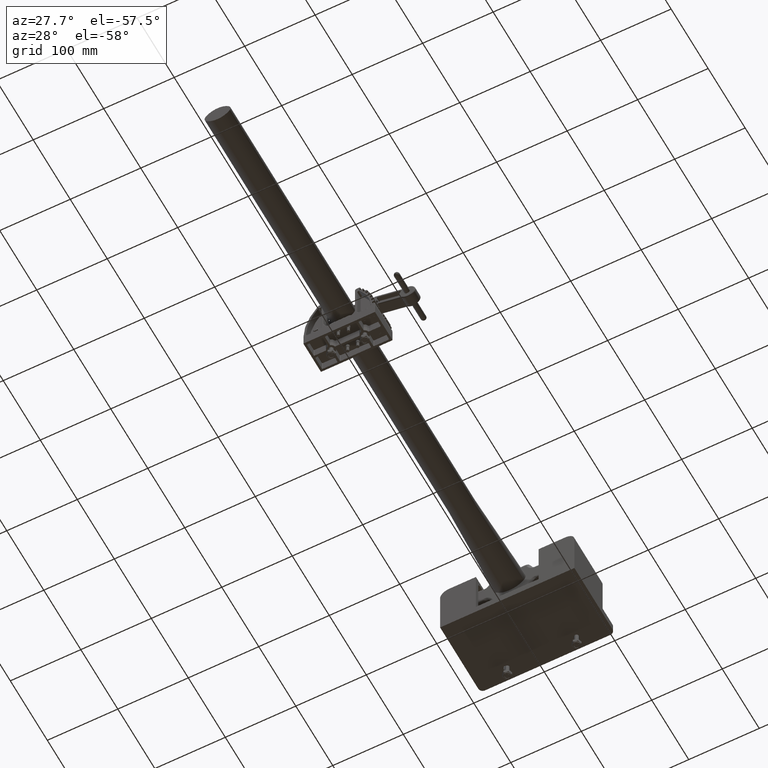
[diagram: clean part render]
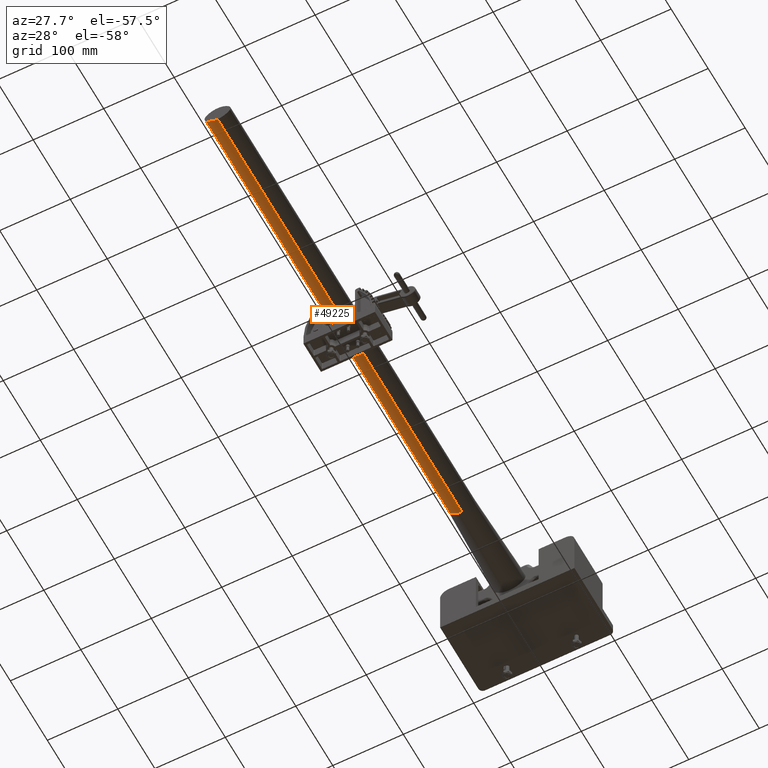
[diagram: same view with one face highlighted and labeled with its STEP entity id]
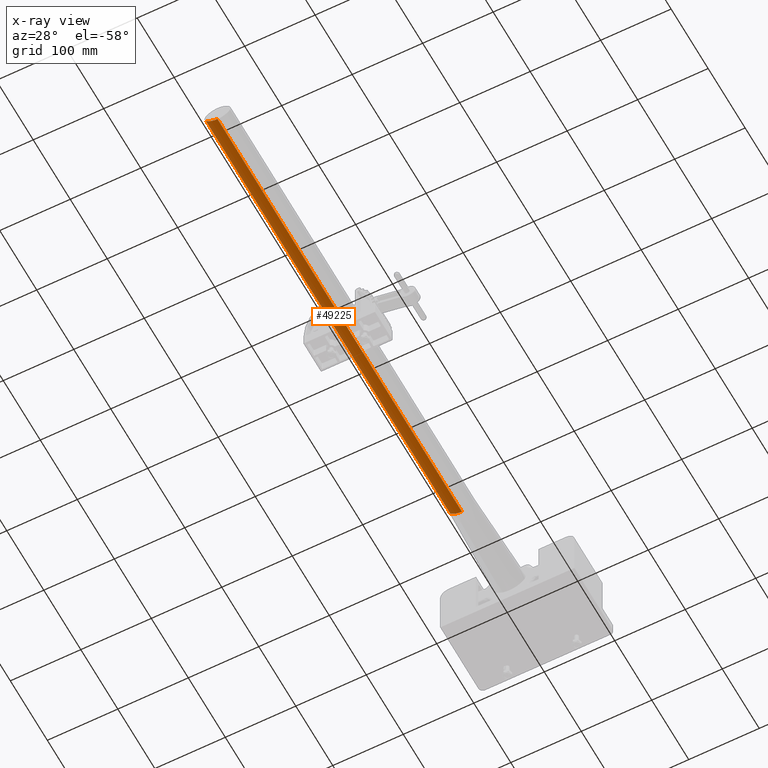
[diagram: x-ray of the same camera — body ghosted, the highlighted face saturated]
A machine part, auxiliary view. The second image highlights one B-rep face of the part: STEP entity #49225.
The next image is the same camera in x-ray: the body ghosted, the highlighted face saturated — about 0% of this face is hidden behind the body in this view.
In plain terms, the highlighted cylindrical surface (edge-blend (fillet) strip) has radius 21.844 mm, axis along (-0, -1, -0).
Its self-contained STEP definition (entity closure, byte-faithful):
#1464 = VERTEX_POINT ( 'NONE', #25642 ) ;
#1488 = VERTEX_POINT ( 'NONE', #4899 ) ;
#1492 = VERTEX_POINT ( 'NONE', #4903 ) ;
#1494 = VERTEX_POINT ( 'NONE', #4905 ) ;
#4899 = CARTESIAN_POINT ( 'NONE',  ( 1.093806325588230400E-016, 0.0000000000000000000, -0.5000000000000001100 ) ) ;
#4903 = CARTESIAN_POINT ( 'NONE',  ( -0.6479452054794520000, 26.00000000000000000, -0.2054794520547947300 ) ) ;
#4905 = CARTESIAN_POINT ( 'NONE',  ( -0.6479452054794520000, 0.0000000000000000000, -0.2054794520547944500 ) ) ;
#7673 = ORIENTED_EDGE ( 'NONE', *, *, #35003, .F. ) ;
#7675 = ORIENTED_EDGE ( 'NONE', *, *, #35002, .T. ) ;
#7676 = ORIENTED_EDGE ( 'NONE', *, *, #35000, .T. ) ;
#7678 = ORIENTED_EDGE ( 'NONE', *, *, #35004, .F. ) ;
#8839 = CARTESIAN_POINT ( 'NONE',  ( 1.093806325588230400E-016, 0.0000000000000000000, 0.3599999999999997100 ) ) ;
#8842 = CARTESIAN_POINT ( 'NONE',  ( -0.6479452054794520000, 26.00000000000000000, -0.2054794520547944500 ) ) ;
#8847 = CARTESIAN_POINT ( 'NONE',  ( 1.093806325588230400E-016, 26.00000000000000000, -0.5000000000000001100 ) ) ;
#8848 = DIRECTION ( 'NONE',  ( 0.0000000000000000000, 1.000000000000000000, -0.0000000000000000000 ) ) ;
#8849 = DIRECTION ( 'NONE',  ( 0.0000000000000000000, 0.0000000000000000000, -1.000000000000000000 ) ) ;
#8853 = CARTESIAN_POINT ( 'NONE',  ( 1.093806325588230400E-016, 26.00000000000000000, 0.3599999999999997100 ) ) ;
#8854 = DIRECTION ( 'NONE',  ( -0.0000000000000000000, -1.000000000000000000, -0.0000000000000000000 ) ) ;
#8855 = DIRECTION ( 'NONE',  ( 0.0000000000000000000, 1.000000000000000000, -0.0000000000000000000 ) ) ;
#8856 = DIRECTION ( 'NONE',  ( 0.0000000000000000000, 0.0000000000000000000, -1.000000000000000000 ) ) ;
#8858 = DIRECTION ( 'NONE',  ( -0.0000000000000000000, -1.000000000000000000, -0.0000000000000000000 ) ) ;
#12962 = AXIS2_PLACEMENT_3D ( 'NONE', #37791, #37790, #37788 ) ;
#19095 = VECTOR ( 'NONE', #8858, 39.37007874015748100 ) ;
#19098 = VECTOR ( 'NONE', #8854, 39.37007874015748100 ) ;
#19099 = CIRCLE ( 'NONE', #38789, 0.8599999999999998800 ) ;
#19100 = LINE ( 'NONE', #8847, #19098 ) ;
#19103 = LINE ( 'NONE', #8842, #19095 ) ;
#19104 = CIRCLE ( 'NONE', #38793, 0.8599999999999998800 ) ;
#25642 = CARTESIAN_POINT ( 'NONE',  ( 1.093806325588230400E-016, 26.00000000000000000, -0.5000000000000001100 ) ) ;
#35000 = EDGE_CURVE ( 'NONE', #1488, #1494, #19099, .T. ) ;
#35002 = EDGE_CURVE ( 'NONE', #1464, #1488, #19100, .T. ) ;
#35003 = EDGE_CURVE ( 'NONE', #1464, #1492, #19104, .T. ) ;
#35004 = EDGE_CURVE ( 'NONE', #1492, #1494, #19103, .T. ) ;
#37788 = DIRECTION ( 'NONE',  ( 0.0000000000000000000, 0.0000000000000000000, -1.000000000000000000 ) ) ;
#37790 = DIRECTION ( 'NONE',  ( -0.0000000000000000000, -1.000000000000000000, -0.0000000000000000000 ) ) ;
#37791 = CARTESIAN_POINT ( 'NONE',  ( 1.093806325588230400E-016, 26.00000000000000000, 0.3599999999999997100 ) ) ;
#38789 = AXIS2_PLACEMENT_3D ( 'NONE', #8839, #8848, #8849 ) ;
#38793 = AXIS2_PLACEMENT_3D ( 'NONE', #8853, #8855, #8856 ) ;
#41284 = FACE_OUTER_BOUND ( 'NONE', #49462, .T. ) ;
#41291 = CYLINDRICAL_SURFACE ( 'NONE', #12962, 0.8599999999999998800 ) ;
#49225 = ADVANCED_FACE ( 'NONE', ( #41284 ), #41291, .T. ) ;
#49462 = EDGE_LOOP ( 'NONE', ( #7673, #7675, #7676, #7678 ) ) ;